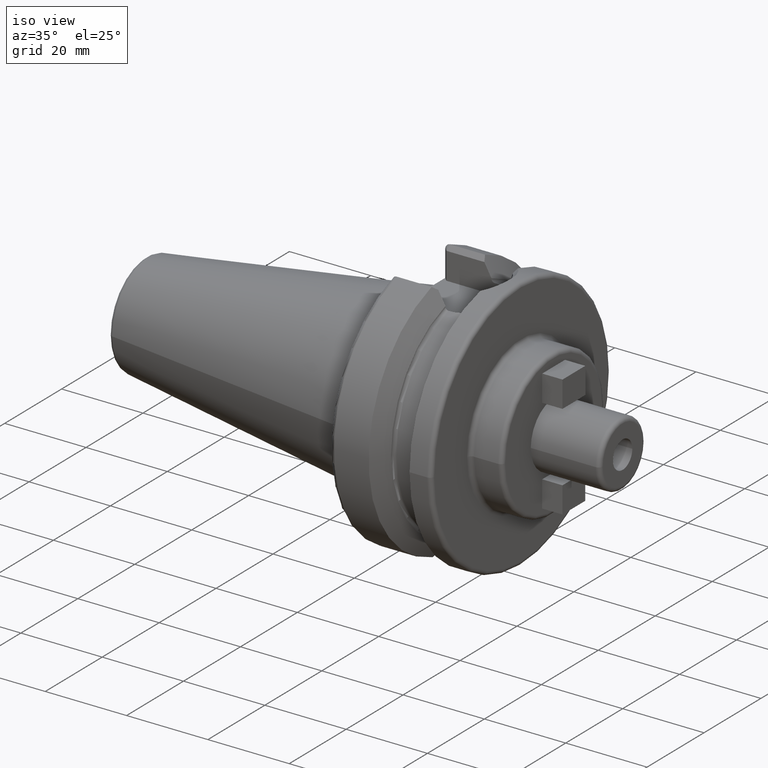
[diagram: clean part render]
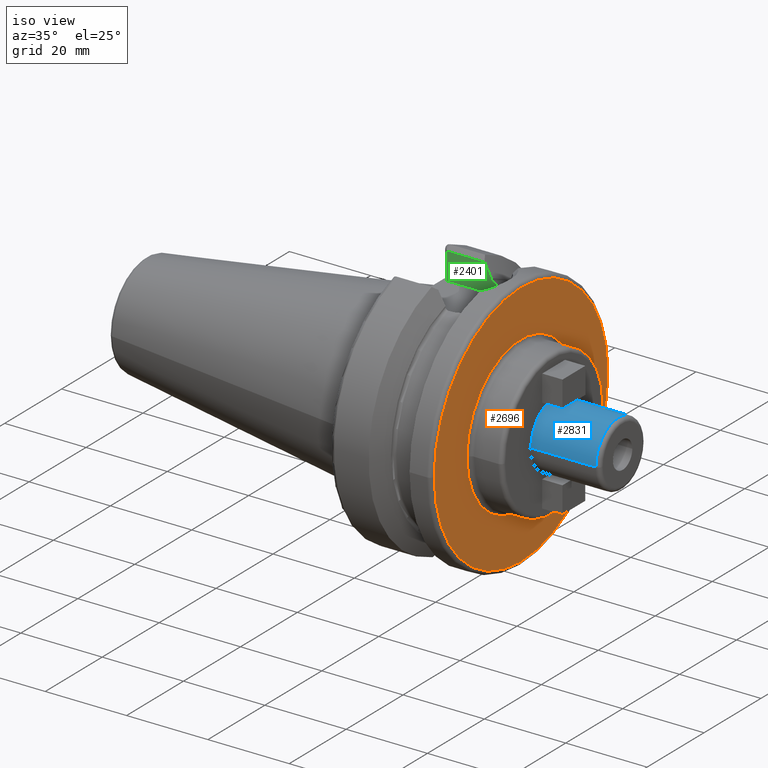
[diagram: same view with three faces highlighted in distinct colors, each labeled with its STEP entity id]
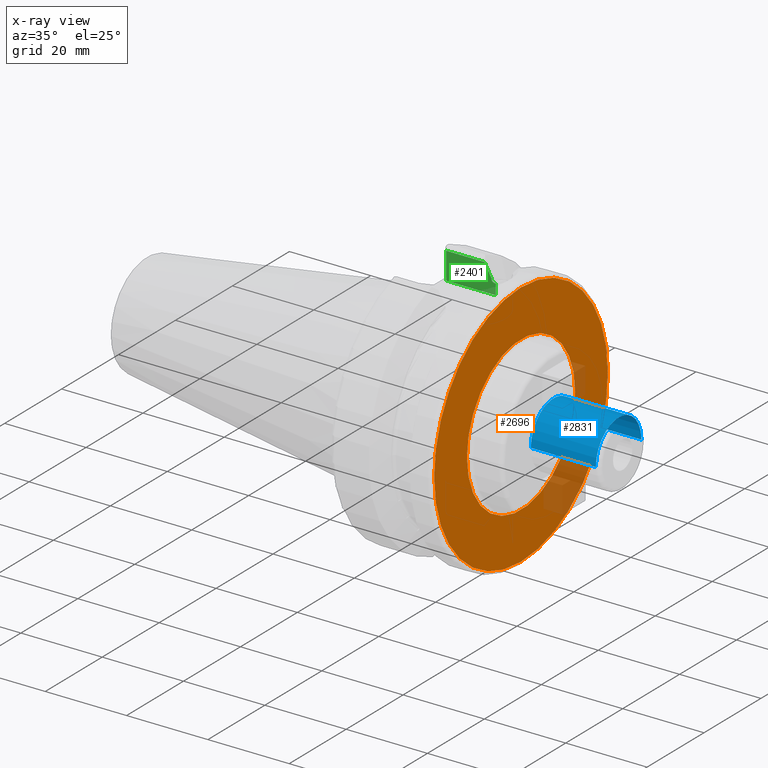
[diagram: x-ray of the same camera — body ghosted, the three highlighted faces saturated]
A machine part, iso view with three faces highlighted in distinct colors.
The next image is the same camera in x-ray (body ghosted, the three faces saturated) — at least one of them is partly hidden behind the body in this view.
Their STEP definitions:

[orange] entity #2696 — the highlighted planar face has unit normal (1, 0, 0).
#816=CARTESIAN_POINT('',(2.7E1,0.E0,0.E0));
#817=DIRECTION('',(1.E0,0.E0,0.E0));
#818=DIRECTION('',(0.E0,1.E0,0.E0));
#819=AXIS2_PLACEMENT_3D('',#816,#817,#818);
#831=CARTESIAN_POINT('',(2.7E1,0.E0,0.E0));
#832=DIRECTION('',(-1.E0,0.E0,0.E0));
#833=DIRECTION('',(0.E0,1.E0,0.E0));
#834=AXIS2_PLACEMENT_3D('',#831,#832,#833);
#836=CARTESIAN_POINT('',(2.7E1,0.E0,0.E0));
#837=DIRECTION('',(1.E0,0.E0,0.E0));
#838=DIRECTION('',(0.E0,-1.E0,0.E0));
#839=AXIS2_PLACEMENT_3D('',#836,#837,#838);
#841=CARTESIAN_POINT('',(2.7E1,0.E0,0.E0));
#842=DIRECTION('',(1.E0,0.E0,0.E0));
#843=DIRECTION('',(0.E0,1.E0,0.E0));
#844=AXIS2_PLACEMENT_3D('',#841,#842,#843);
#1438=CARTESIAN_POINT('',(2.7E1,3.04875E1,0.E0));
#1439=VERTEX_POINT('',#1438);
#1440=CARTESIAN_POINT('',(2.7E1,-3.04875E1,0.E0));
#1441=VERTEX_POINT('',#1440);
#1527=CARTESIAN_POINT('',(2.7E1,-1.9E1,0.E0));
#1528=CARTESIAN_POINT('',(2.7E1,1.9E1,0.E0));
#1529=VERTEX_POINT('',#1527);
#1530=VERTEX_POINT('',#1528);
#2681=CARTESIAN_POINT('',(2.7E1,0.E0,0.E0));
#2682=DIRECTION('',(1.E0,0.E0,0.E0));
#2683=DIRECTION('',(0.E0,-1.E0,0.E0));
#2684=AXIS2_PLACEMENT_3D('',#2681,#2682,#2683);
#2685=PLANE('',#2684);
#2686=ORIENTED_EDGE('',*,*,#2676,.T.);
#2687=ORIENTED_EDGE('',*,*,#2660,.F.);
#2688=EDGE_LOOP('',(#2686,#2687));
#2689=FACE_OUTER_BOUND('',#2688,.F.);
#2691=ORIENTED_EDGE('',*,*,#2690,.T.);
#2693=ORIENTED_EDGE('',*,*,#2692,.T.);
#2694=EDGE_LOOP('',(#2691,#2693));
#2695=FACE_BOUND('',#2694,.F.);
#2696=ADVANCED_FACE('',(#2689,#2695),#2685,.T.);
#820=CIRCLE('',#819,3.04875E1);
#835=CIRCLE('',#834,3.04875E1);
#840=CIRCLE('',#839,1.9E1);
#845=CIRCLE('',#844,1.9E1);
#2660=EDGE_CURVE('',#1439,#1441,#820,.T.);
#2676=EDGE_CURVE('',#1439,#1441,#835,.T.);
#2690=EDGE_CURVE('',#1529,#1530,#840,.T.);
#2692=EDGE_CURVE('',#1530,#1529,#845,.T.);

[blue] entity #2831 — the highlighted cylindrical surface (partial cylindrical patch) has radius 8 mm, axis along (1, 0, 0).
#894=CARTESIAN_POINT('',(3.5E1,0.E0,0.E0));
#895=DIRECTION('',(1.E0,0.E0,0.E0));
#896=DIRECTION('',(0.E0,1.E0,0.E0));
#897=AXIS2_PLACEMENT_3D('',#894,#895,#896);
#946=CARTESIAN_POINT('',(5.1E1,0.E0,0.E0));
#947=DIRECTION('',(-1.E0,0.E0,0.E0));
#948=DIRECTION('',(0.E0,-1.E0,0.E0));
#949=AXIS2_PLACEMENT_3D('',#946,#947,#948);
#966=DIRECTION('',(-1.E0,0.E0,1.161148139563E-13));
#967=VECTOR('',#966,1.6E1);
#968=CARTESIAN_POINT('',(5.1E1,8.E0,-1.857183878340E-12));
#969=LINE('',#968,#967);
#970=DIRECTION('',(-1.E0,0.E0,-1.159884835688E-13));
#971=VECTOR('',#970,1.6E1);
#972=CARTESIAN_POINT('',(5.1E1,-8.E0,1.855162592141E-12));
#973=LINE('',#972,#971);
#1539=CARTESIAN_POINT('',(3.5E1,8.E0,0.E0));
#1540=CARTESIAN_POINT('',(3.5E1,-8.E0,0.E0));
#1541=VERTEX_POINT('',#1539);
#1542=VERTEX_POINT('',#1540);
#1547=CARTESIAN_POINT('',(5.1E1,8.E0,0.E0));
#1548=CARTESIAN_POINT('',(5.1E1,-8.E0,0.E0));
#1549=VERTEX_POINT('',#1547);
#1550=VERTEX_POINT('',#1548);
#2817=CARTESIAN_POINT('',(2.575E1,0.E0,0.E0));
#2818=DIRECTION('',(1.E0,0.E0,0.E0));
#2819=DIRECTION('',(0.E0,-1.E0,0.E0));
#2820=AXIS2_PLACEMENT_3D('',#2817,#2818,#2819);
#2821=CYLINDRICAL_SURFACE('',#2820,8.E0);
#2823=ORIENTED_EDGE('',*,*,#2822,.F.);
#2825=ORIENTED_EDGE('',*,*,#2824,.T.);
#2826=ORIENTED_EDGE('',*,*,#2790,.F.);
#2828=ORIENTED_EDGE('',*,*,#2827,.F.);
#2829=EDGE_LOOP('',(#2823,#2825,#2826,#2828));
#2830=FACE_OUTER_BOUND('',#2829,.F.);
#2831=ADVANCED_FACE('',(#2830),#2821,.T.);
#898=CIRCLE('',#897,8.E0);
#950=CIRCLE('',#949,8.E0);
#2790=EDGE_CURVE('',#1541,#1542,#898,.T.);
#2822=EDGE_CURVE('',#1550,#1549,#950,.T.);
#2824=EDGE_CURVE('',#1550,#1542,#973,.T.);
#2827=EDGE_CURVE('',#1549,#1541,#969,.T.);

[green] entity #2401 — the highlighted planar face has unit normal (0, 1, 0).
#642=DIRECTION('',(6.771558882016E-14,0.E0,1.E0));
#643=VECTOR('',#642,5.246522611264E-2);
#644=CARTESIAN_POINT('',(1.40625E1,8.095E0,2.588892813540E1));
#645=LINE('',#644,#643);
#646=CARTESIAN_POINT('',(1.48125E1,8.095E0,2.510202382279E1));
#647=CARTESIAN_POINT('',(1.474626583175E1,8.095E0,2.510202382279E1));
#648=CARTESIAN_POINT('',(1.462196122728E1,8.095E0,2.512019824361E1));
#649=CARTESIAN_POINT('',(1.446015344720E1,8.095E0,2.518681119149E1));
#650=CARTESIAN_POINT('',(1.432194250541E1,8.095E0,2.528577048685E1));
#651=CARTESIAN_POINT('',(1.421112933741E1,8.095E0,2.540882158997E1));
#652=CARTESIAN_POINT('',(1.412599264270E1,8.095E0,2.555700431287E1));
#653=CARTESIAN_POINT('',(1.407429746920E1,8.095E0,2.571931087657E1));
#654=CARTESIAN_POINT('',(1.40625E1,8.095E0,2.583143069402E1));
#655=CARTESIAN_POINT('',(1.40625E1,8.095E0,2.588892813540E1));
#657=DIRECTION('',(1.E0,0.E0,0.E0));
#658=VECTOR('',#657,3.425E-1);
#659=CARTESIAN_POINT('',(1.48125E1,8.095E0,2.510202382279E1));
#660=LINE('',#659,#658);
#661=DIRECTION('',(0.E0,0.E0,1.E0));
#662=VECTOR('',#661,2.652023822792E0);
#663=CARTESIAN_POINT('',(1.5155E1,8.095E0,2.245E1));
#664=LINE('',#663,#662);
#665=DIRECTION('',(0.E0,0.E0,1.E0));
#666=VECTOR('',#665,6.649289188054E0);
#667=CARTESIAN_POINT('',(3.E0,8.095E0,2.245E1));
#668=LINE('',#667,#666);
#669=DIRECTION('',(1.E0,0.E0,0.E0));
#670=VECTOR('',#669,9.313598297306E0);
#671=CARTESIAN_POINT('',(3.E0,8.095E0,2.909928918805E1));
#672=LINE('',#671,#670);
#673=CARTESIAN_POINT('',(1.40625E1,8.095E0,2.594139336151E1));
#674=CARTESIAN_POINT('',(1.387619304722E1,8.095E0,2.627943267022E1));
#675=CARTESIAN_POINT('',(1.349822147379E1,8.095E0,2.696405968402E1));
#676=CARTESIAN_POINT('',(1.291532431893E1,8.095E0,2.801651320770E1));
#677=CARTESIAN_POINT('',(1.251595456147E1,8.095E0,2.873548878206E1));
#678=CARTESIAN_POINT('',(1.231359829731E1,8.095E0,2.909928918805E1));
#692=DIRECTION('',(-1.E0,0.E0,0.E0));
#693=VECTOR('',#692,1.2155E1);
#694=CARTESIAN_POINT('',(1.5155E1,8.095E0,2.245E1));
#695=LINE('',#694,#693);
#1316=CARTESIAN_POINT('',(1.40625E1,8.095E0,2.588892813540E1));
#1318=VERTEX_POINT('',#1316);
#1324=CARTESIAN_POINT('',(1.48125E1,8.095E0,2.510202382279E1));
#1326=VERTEX_POINT('',#1324);
#1353=CARTESIAN_POINT('',(1.40625E1,8.095E0,2.594139336151E1));
#1355=VERTEX_POINT('',#1353);
#1443=CARTESIAN_POINT('',(1.5155E1,8.095E0,2.245E1));
#1445=VERTEX_POINT('',#1443);
#1458=CARTESIAN_POINT('',(1.5155E1,8.095E0,2.510202382279E1));
#1459=VERTEX_POINT('',#1458);
#1460=VERTEX_POINT('',#678);
#1498=CARTESIAN_POINT('',(3.E0,8.095E0,2.245E1));
#1499=CARTESIAN_POINT('',(3.E0,8.095E0,2.909928918805E1));
#1500=VERTEX_POINT('',#1498);
#1501=VERTEX_POINT('',#1499);
#2384=CARTESIAN_POINT('',(1.5155E1,8.095E0,2.245E1));
#2385=DIRECTION('',(0.E0,1.E0,0.E0));
#2386=DIRECTION('',(-1.E0,0.E0,0.E0));
#2387=AXIS2_PLACEMENT_3D('',#2384,#2385,#2386);
#2388=PLANE('',#2387);
#2389=ORIENTED_EDGE('',*,*,#1838,.F.);
#2390=ORIENTED_EDGE('',*,*,#1992,.F.);
#2391=ORIENTED_EDGE('',*,*,#2024,.T.);
#2392=ORIENTED_EDGE('',*,*,#2141,.F.);
#2394=ORIENTED_EDGE('',*,*,#2393,.T.);
#2396=ORIENTED_EDGE('',*,*,#2395,.T.);
#2397=ORIENTED_EDGE('',*,*,#2377,.T.);
#2398=ORIENTED_EDGE('',*,*,#1870,.F.);
#2399=EDGE_LOOP('',(#2389,#2390,#2391,#2392,#2394,#2396,#2397,#2398));
#2400=FACE_OUTER_BOUND('',#2399,.F.);
#2401=ADVANCED_FACE('',(#2400),#2388,.F.);
#656=B_SPLINE_CURVE_WITH_KNOTS('',3,(#646,#647,#648,#649,#650,#651,#652,#653,
#654,#655),.UNSPECIFIED.,.F.,.F.,(4,1,1,1,1,1,1,4),(0.E0,1.428571428571E-1,
2.857142857143E-1,4.285714285714E-1,5.714285714286E-1,7.142857142857E-1,
8.571428571429E-1,1.E0),.UNSPECIFIED.);
#679=B_SPLINE_CURVE_WITH_KNOTS('',3,(#673,#674,#675,#676,#677,#678),
.UNSPECIFIED.,.F.,.F.,(4,1,1,4),(0.E0,3.333333333333E-1,6.666666666667E-1,1.E0),
.UNSPECIFIED.);
#1838=EDGE_CURVE('',#1318,#1355,#645,.T.);
#1870=EDGE_CURVE('',#1355,#1460,#679,.T.);
#1992=EDGE_CURVE('',#1326,#1318,#656,.T.);
#2024=EDGE_CURVE('',#1326,#1459,#660,.T.);
#2141=EDGE_CURVE('',#1445,#1459,#664,.T.);
#2377=EDGE_CURVE('',#1501,#1460,#672,.T.);
#2393=EDGE_CURVE('',#1445,#1500,#695,.T.);
#2395=EDGE_CURVE('',#1500,#1501,#668,.T.);